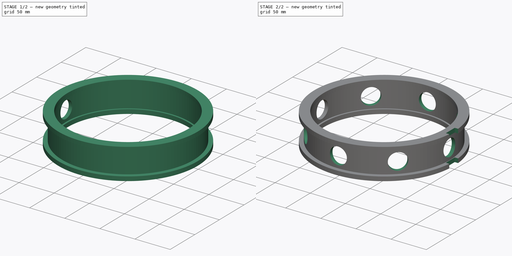
[diagram: build sequence overview — one tinted view per stage of 2, left to right]
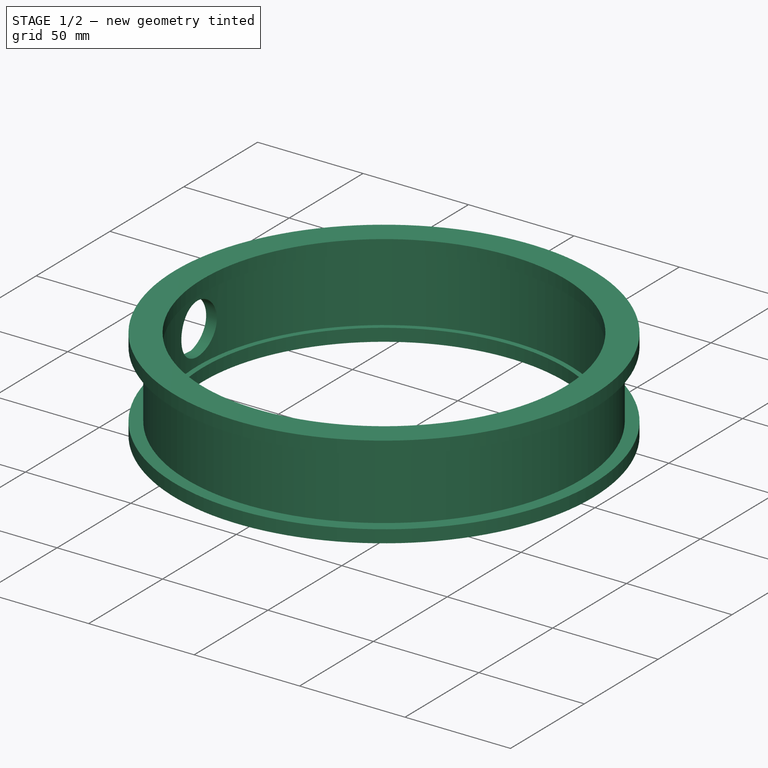
[diagram: stage 1 of 2 — iso view after this stage's code; geometry added in this stage tinted green]
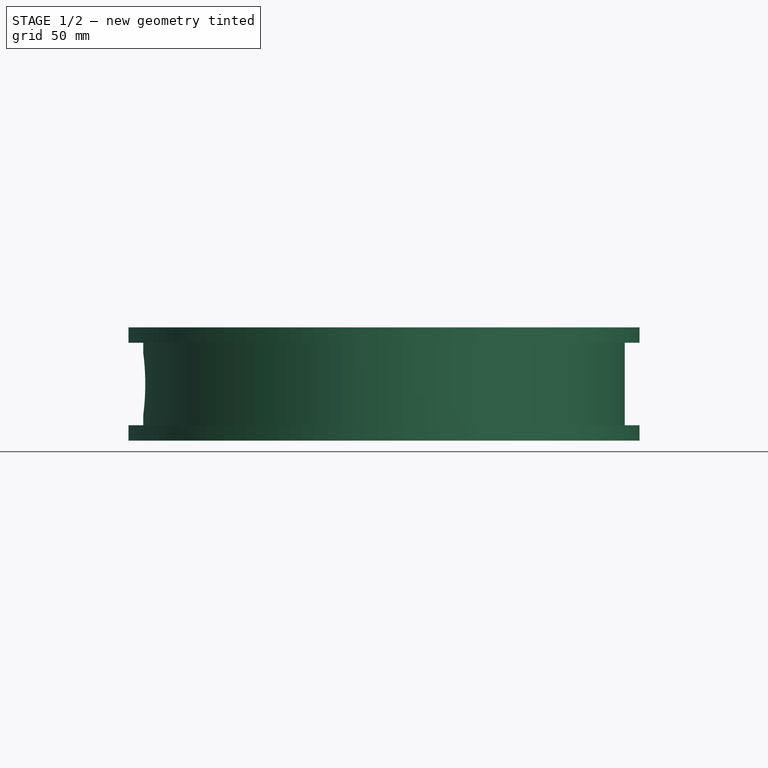
[diagram: stage 1 of 2 — front view after this stage's code; geometry added in this stage tinted green]
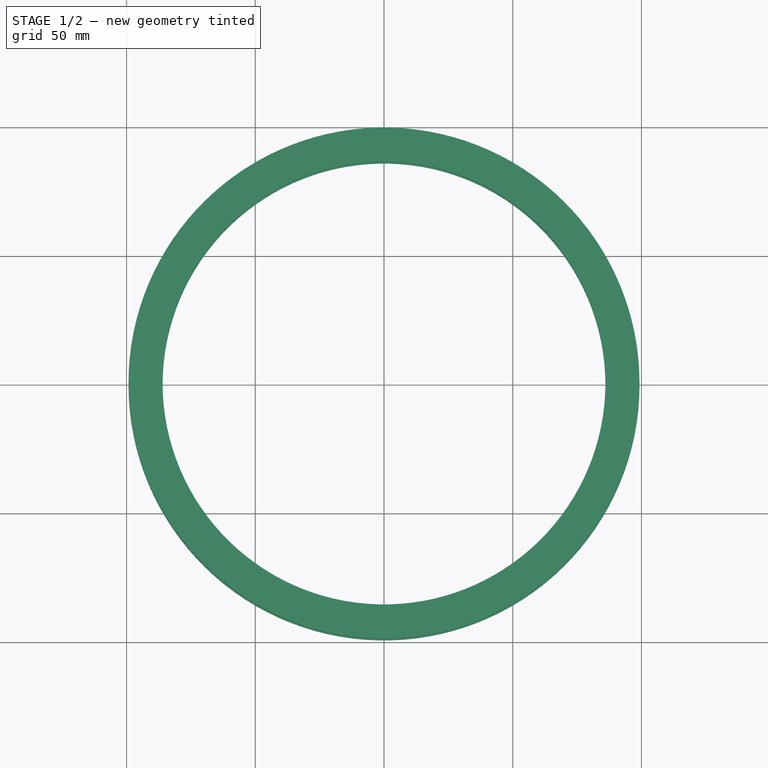
[diagram: stage 1 of 2 — top view after this stage's code; geometry added in this stage tinted green]
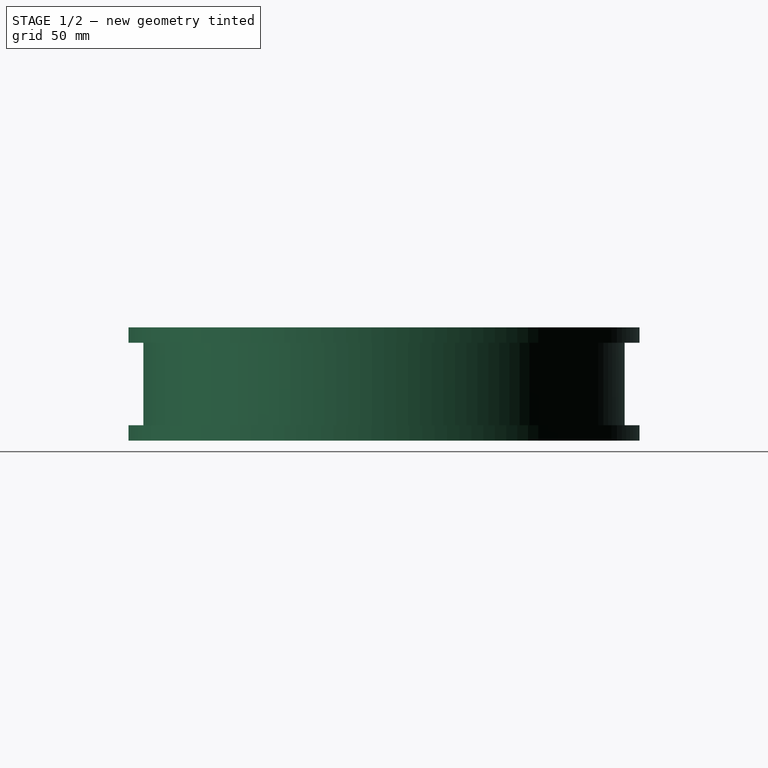
[diagram: stage 1 of 2 — right view after this stage's code; geometry added in this stage tinted green]
FCSTD DOCUMENT  (FreeCAD 0.17R9692 (Git))
Label: 6thExample
License: All rights reserved
LicenseURL: http://en.wikipedia.org/wiki/All_rights_reserved
objects: Sketcher::SketchObject×3, PartDesign::Pocket×2, PartDesign::Revolution×1, PartDesign::PolarPattern×1, PartDesign::Plane×1, PartDesign::Body×1, App::Part×1
note: 12 computed .brp shape members not serialized (recipe doc carries the construction recipe); baked Part::Feature solids carry a one-line shape summary decoded from their .brp

FEATURE [Sketcher::SketchObject] Sketch
  MapMode = 5
  Placement = pos=(0,0,0) rot=(1,0,0;1.5708rad)
  Support = -> [XZ_Plane001]
  sketch-geometry (12):
    g0: LineSegment StartX=86 StartY=22 StartZ=0 EndX=99.25 EndY=22 EndZ=0
    g1: LineSegment StartX=99.25 StartY=22 StartZ=0 EndX=99.25 EndY=16 EndZ=0
    g2: LineSegment StartX=99.25 StartY=-22 StartZ=0 EndX=86 EndY=-22 EndZ=0
    g3: LineSegment StartX=86 StartY=-22 StartZ=0 EndX=86 EndY=-16 EndZ=0
    g4: LineSegment StartX=93.5 StartY=16 StartZ=0 EndX=99.25 EndY=16 EndZ=0
    g5: LineSegment StartX=99.25 StartY=-16 StartZ=0 EndX=93.5 EndY=-16 EndZ=0
    g6: LineSegment StartX=93.5 StartY=-16 StartZ=0 EndX=93.5 EndY=16 EndZ=0
    g7: LineSegment StartX=99.25 StartY=-16 StartZ=0 EndX=99.25 EndY=-22 EndZ=0
    g8: LineSegment StartX=86 StartY=16 StartZ=0 EndX=88.5 EndY=16 EndZ=0
    g9: LineSegment StartX=88.5 StartY=16 StartZ=0 EndX=88.5 EndY=-16 EndZ=0
    g10: LineSegment StartX=88.5 StartY=-16 StartZ=0 EndX=86 EndY=-16 EndZ=0
    g11: LineSegment StartX=86 StartY=16 StartZ=0 EndX=86 EndY=22 EndZ=0
  constraints (35):
    c: Coincident(g0,g1)
    c: Coincident(g7,g2)
    c: Coincident(g2,g3)
    c: Coincident(g11,g0)
    c: Horizontal(g0)
    c: Horizontal(g2)
    c: Vertical(g1)
    c: Vertical(g3)
    c: Coincident(g5,g6)
    c: Coincident(g6,g4)
    c: Horizontal(g4)
    c: Horizontal(g5)
    c: Vertical(g6)
    c: Tangent(g1,g7)
    c: Coincident(g4,g1)
    c: Coincident(g5,g7)
    c: Distance(g-1,g7) = 99.25
    c: Symmetric(g0,g2,g-1)
    c: Symmetric(g4,g5,g-1)
    c: Coincident(g8,g9)
    c: Coincident(g9,g10)
    c: Horizontal(g8)
    c: Horizontal(g10)
    c: Vertical(g9)
    c: Tangent(g3,g11)
    c: Coincident(g8,g11)
    c: Coincident(g10,g3)
    c: DistanceX(g-2,g0) = 86
    c: Distance(g-1,g6) = 93.5
    c: Distance(g0,g2) = 44
    c: PointOnObject(g5,g10)
    c: Equal(g7,g1)
    c: Distance(g1) = 6
    c: PointOnObject(g4,g8)
    c: Distance(g-1,g9) = 88.5
FEATURE [PartDesign::Revolution] Revolution
  Angle = 360
  Axis = (0,0,1)
  Base = (0,0,0)
  Placement = pos=(0,0,0) rot=(1,0,0;1.5708rad)
  Profile = -> Sketch
  ReferenceAxis = -> Sketch [V_Axis]
  Reversed = true
FEATURE [Sketcher::SketchObject] Sketch001
  MapMode = 5
  Placement = pos=(0,0,0) rot=(0.57735,0.57735,0.57735;2.0944rad)
  Support = -> [YZ_Plane001]
  sketch-geometry (1):
    g0: Circle CenterX=0 CenterY=0 CenterZ=0 NormalX=0 NormalY=0 NormalZ=1 Radius=12
  constraints (2):
    c: Coincident(g0,g-1)
    c: Radius(g0) = 12
FEATURE [PartDesign::Pocket] Pocket
  BaseFeature = -> Revolution
  Length = 100
  Placement = pos=(0,0,0) rot=(1,0,0;1.5708rad)
  Profile = -> Sketch001
  Type = 0
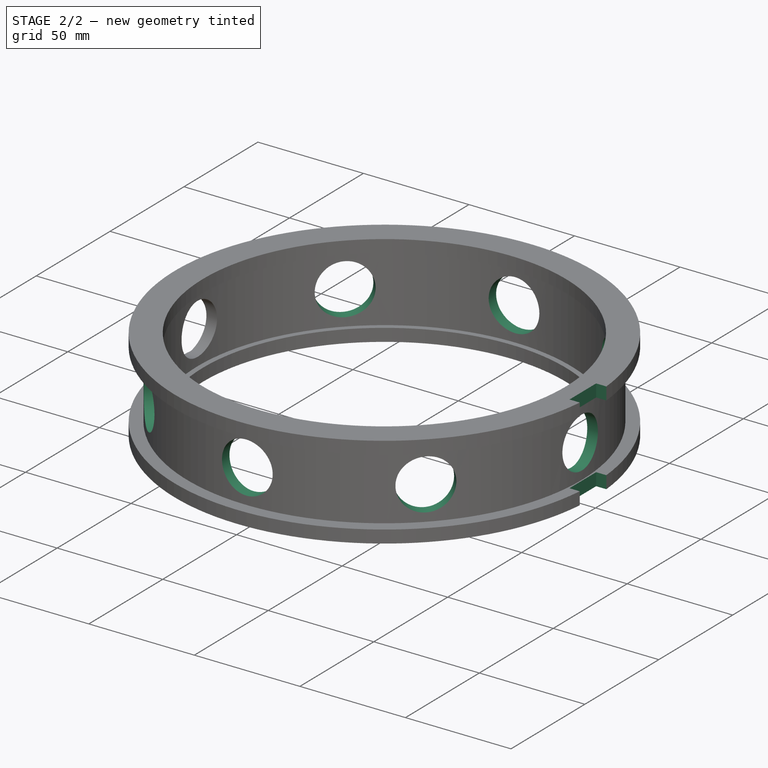
[diagram: stage 2 of 2 — iso view after this stage's code; geometry added in this stage tinted green]
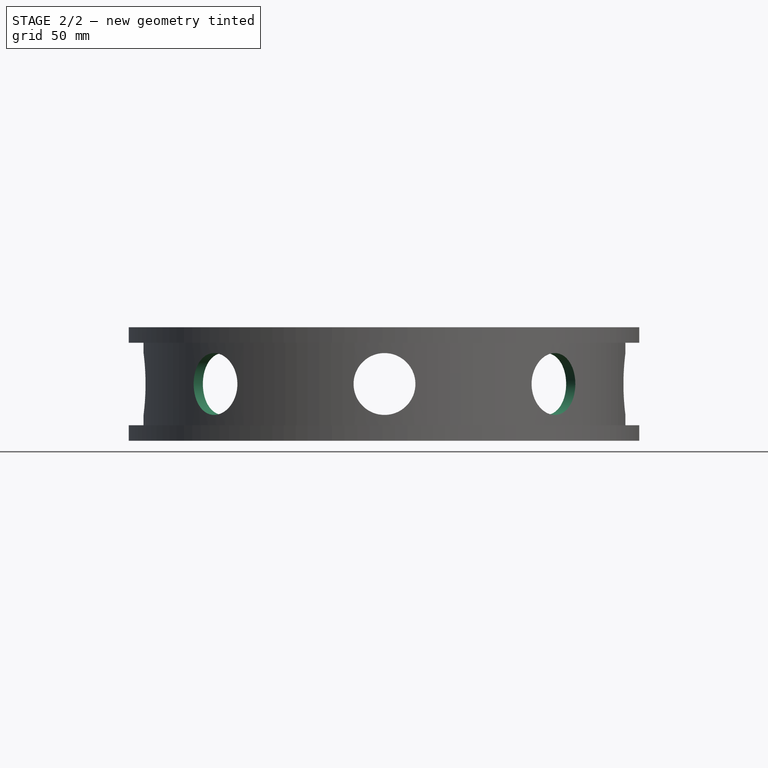
[diagram: stage 2 of 2 — front view after this stage's code; geometry added in this stage tinted green]
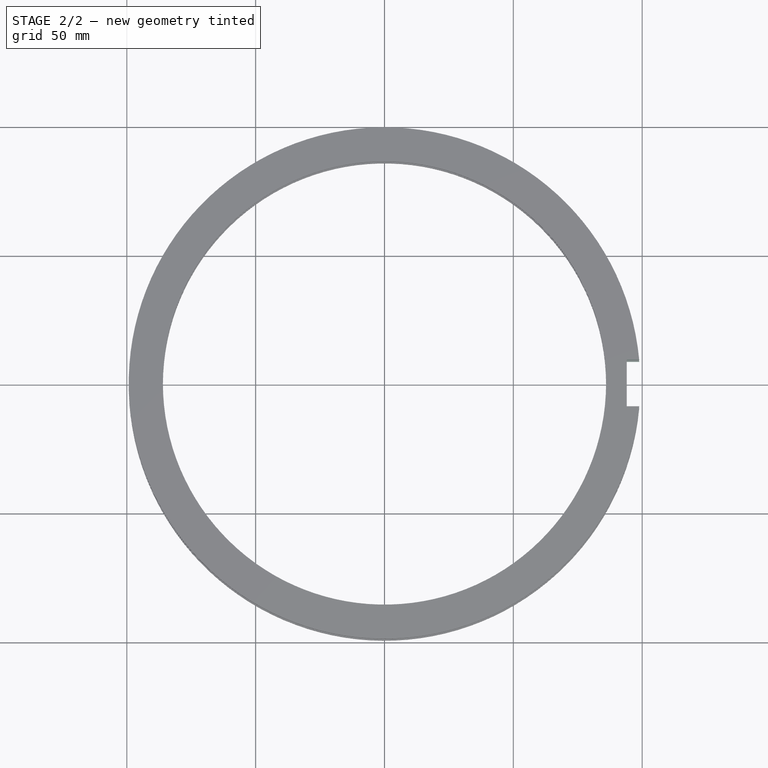
[diagram: stage 2 of 2 — top view after this stage's code; geometry added in this stage tinted green]
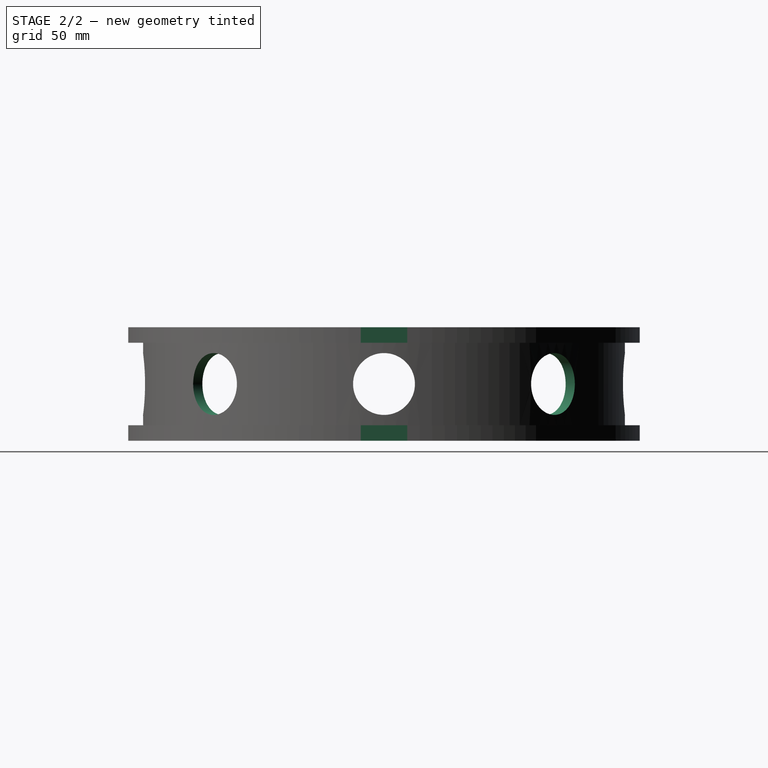
[diagram: stage 2 of 2 — right view after this stage's code; geometry added in this stage tinted green]
FEATURE [PartDesign::PolarPattern] PolarPattern
  Angle = 360
  Axis = -> Sketch001 [V_Axis]
  BaseFeature = -> Pocket
  Occurrences = 8
  Originals = -> [Pocket]
  Placement = pos=(0,0,0) rot=(1,0,0;1.5708rad)
FEATURE [PartDesign::Plane] DatumPlane
  MapMode = 1
  Placement = pos=(99.25,0,-16) rot=(0.57735,0.57735,0.57735;2.0944rad)
  Support = -> [PolarPattern]
FEATURE [Sketcher::SketchObject] Sketch002
  MapMode = 5
  Placement = pos=(99.25,0,-16) rot=(0.57735,0.57735,0.57735;2.0944rad)
  Support = -> [DatumPlane]
  sketch-geometry (4):
    g0: LineSegment StartX=-9 StartY=47.41 StartZ=0 EndX=9 EndY=47.41 EndZ=0
    g1: LineSegment StartX=9 StartY=47.41 StartZ=0 EndX=9 EndY=-47.41 EndZ=0
    g2: LineSegment StartX=9 StartY=-47.41 StartZ=0 EndX=-9 EndY=-47.41 EndZ=0
    g3: LineSegment StartX=-9 StartY=-47.41 StartZ=0 EndX=-9 EndY=47.41 EndZ=0
  constraints (12):
    c: Coincident(g0,g1)
    c: Coincident(g1,g2)
    c: Coincident(g2,g3)
    c: Coincident(g3,g0)
    c: Horizontal(g0)
    c: Horizontal(g2)
    c: Vertical(g1)
    c: Vertical(g3)
    c: Distance(g0) = 18
    c: Symmetric(g0,g0,g-2)
    c: Symmetric(g1,g0,g-1)
    c: Distance(g1) = 94.82
FEATURE [PartDesign::Pocket] Pocket001
  BaseFeature = -> PolarPattern
  Length = 5.25
  Placement = pos=(0,0,0) rot=(1,0,0;1.5708rad)
  Profile = -> Sketch002
  Type = 0
FEATURE [PartDesign::Body] Body
  Group = -> [Sketch,Revolution,Sketch001,Pocket,PolarPattern,DatumPlane,Sketch002,Pocket001]
  Origin = -> BodyOrigin
  Tip = -> Pocket001
FEATURE [App::Part] Part
  Group = -> [Body]
  License = CC BY 3.0
  LicenseURL = http://creativecommons.org/licenses/by/3.0/
  Origin = -> PartOrigin
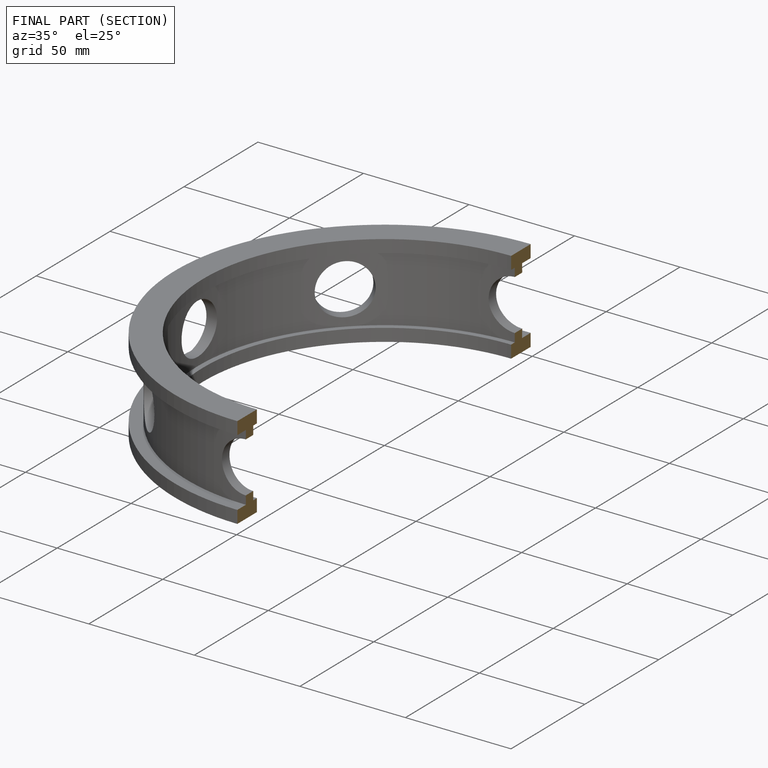
[diagram: finished part — half-section view (interior)]
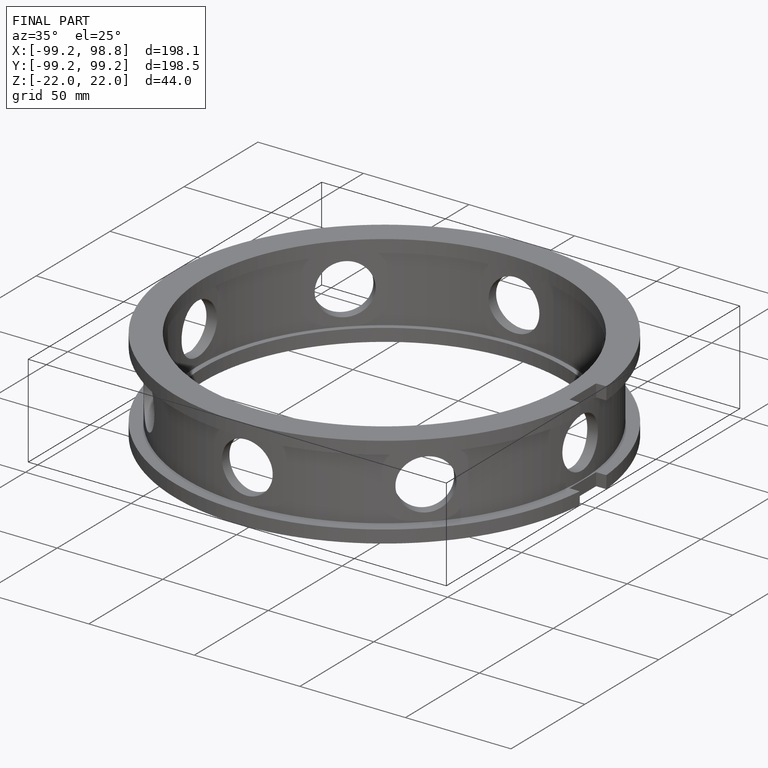
[diagram: finished part — iso view with bounding-box wireframe]
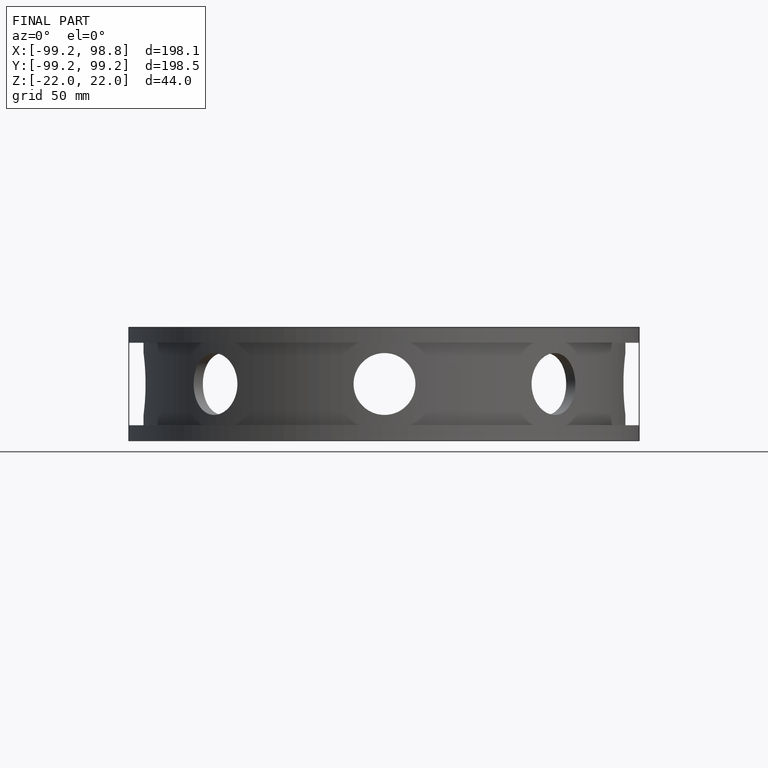
[diagram: finished part — front view with bounding-box wireframe]
